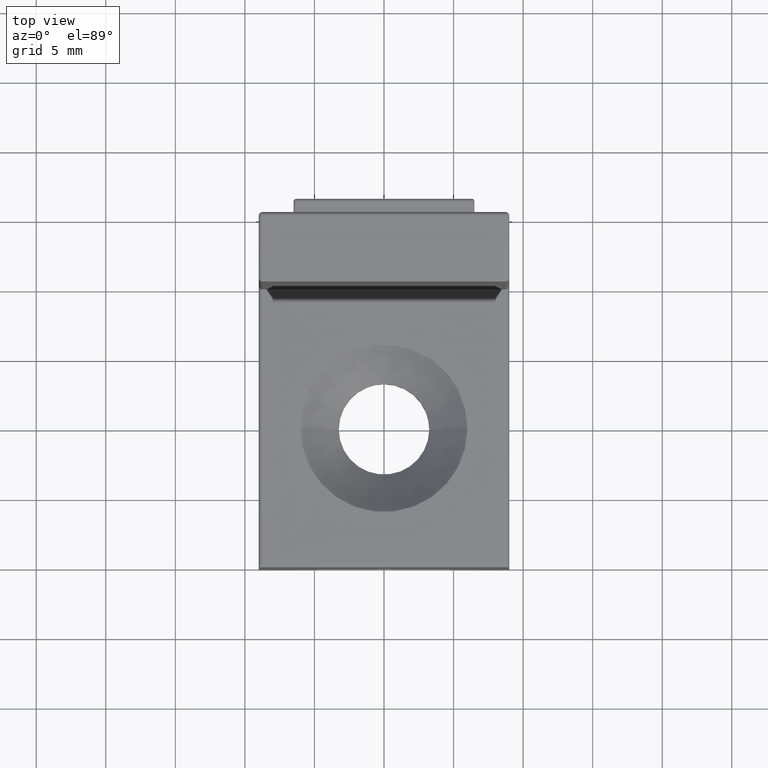
[diagram: clean part render]
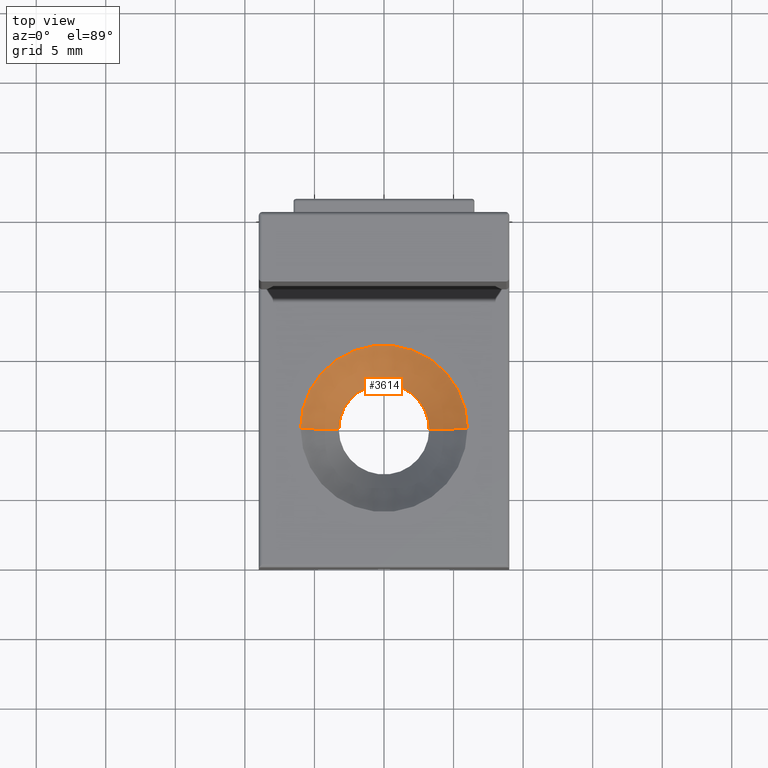
[diagram: same view with one face highlighted and labeled with its STEP entity id]
A machine part, top view. The second image highlights one B-rep face of the part: STEP entity #3614.
In plain terms, the highlighted conical surface has half-angle 45 deg.
Its self-contained STEP definition (entity closure, byte-faithful):
#275 = CARTESIAN_POINT ( 'NONE',  ( -3.249999999999998700, -15.00000000000000000, 4.250000000000000900 ) ) ;
#408 = AXIS2_PLACEMENT_3D ( 'NONE', #8706, #3128, #4323 ) ;
#565 = VERTEX_POINT ( 'NONE', #2586 ) ;
#1344 = CONICAL_SURFACE ( 'NONE', #2089, 6.000000000000000000, 0.7853981633974482800 ) ;
#1636 = VECTOR ( 'NONE', #7721, 1000.000000000000000 ) ;
#1920 = DIRECTION ( 'NONE',  ( 1.000000000000000000, 0.0000000000000000000, 0.0000000000000000000 ) ) ;
#2089 = AXIS2_PLACEMENT_3D ( 'NONE', #10479, #5043, #1920 ) ;
#2526 = CARTESIAN_POINT ( 'NONE',  ( -5.999999999999998200, -15.00000000000000000, 7.000000000000000900 ) ) ;
#2586 = CARTESIAN_POINT ( 'NONE',  ( 3.250000000000002200, -15.00000000000000000, 4.250000000000000900 ) ) ;
#2752 = ORIENTED_EDGE ( 'NONE', *, *, #9404, .T. ) ;
#2836 = CARTESIAN_POINT ( 'NONE',  ( 1.836970198721029600E-015, -15.00000000000000000, 4.250000000000000900 ) ) ;
#3128 = DIRECTION ( 'NONE',  ( -0.0000000000000000000, -0.0000000000000000000, 1.000000000000000000 ) ) ;
#3388 = EDGE_CURVE ( 'NONE', #12302, #9602, #9595, .T. ) ;
#3614 = ADVANCED_FACE ( 'NONE', ( #8742 ), #1344, .F. ) ;
#3953 = DIRECTION ( 'NONE',  ( 1.000000000000000000, 0.0000000000000000000, 0.0000000000000000000 ) ) ;
#4187 = VERTEX_POINT ( 'NONE', #13155 ) ;
#4323 = DIRECTION ( 'NONE',  ( 1.000000000000000000, 0.0000000000000000000, 0.0000000000000000000 ) ) ;
#4550 = LINE ( 'NONE', #9924, #1636 ) ;
#4748 = DIRECTION ( 'NONE',  ( -0.7071067811865474600, 8.659560562354931600E-017, 0.7071067811865475700 ) ) ;
#4943 = DIRECTION ( 'NONE',  ( -0.0000000000000000000, -0.0000000000000000000, 1.000000000000000000 ) ) ;
#5043 = DIRECTION ( 'NONE',  ( -0.0000000000000000000, -0.0000000000000000000, 1.000000000000000000 ) ) ;
#5722 = ORIENTED_EDGE ( 'NONE', *, *, #8188, .F. ) ;
#6760 = CARTESIAN_POINT ( 'NONE',  ( -5.999999999999998200, -15.00000000000000000, 7.000000000000000900 ) ) ;
#6857 = ORIENTED_EDGE ( 'NONE', *, *, #3388, .F. ) ;
#7343 = CIRCLE ( 'NONE', #408, 6.000000000000000000 ) ;
#7358 = CIRCLE ( 'NONE', #7472, 3.250000000000000400 ) ;
#7472 = AXIS2_PLACEMENT_3D ( 'NONE', #2836, #4943, #3953 ) ;
#7721 = DIRECTION ( 'NONE',  ( 0.7071067811865474600, 0.0000000000000000000, 0.7071067811865475700 ) ) ;
#8188 = EDGE_CURVE ( 'NONE', #565, #12302, #7358, .T. ) ;
#8706 = CARTESIAN_POINT ( 'NONE',  ( 1.836970198721029600E-015, -15.00000000000000000, 7.000000000000000900 ) ) ;
#8742 = FACE_OUTER_BOUND ( 'NONE', #9552, .T. ) ;
#9404 = EDGE_CURVE ( 'NONE', #4187, #9602, #7343, .T. ) ;
#9552 = EDGE_LOOP ( 'NONE', ( #6857, #5722, #10371, #2752 ) ) ;
#9595 = LINE ( 'NONE', #2526, #9919 ) ;
#9602 = VERTEX_POINT ( 'NONE', #6760 ) ;
#9919 = VECTOR ( 'NONE', #4748, 1000.000000000000000 ) ;
#9924 = CARTESIAN_POINT ( 'NONE',  ( 6.000000000000001800, -15.00000000000000000, 7.000000000000000900 ) ) ;
#10371 = ORIENTED_EDGE ( 'NONE', *, *, #13831, .T. ) ;
#10479 = CARTESIAN_POINT ( 'NONE',  ( 1.836970198721029600E-015, -15.00000000000000000, 7.000000000000000900 ) ) ;
#12302 = VERTEX_POINT ( 'NONE', #275 ) ;
#13155 = CARTESIAN_POINT ( 'NONE',  ( 6.000000000000001800, -15.00000000000000000, 7.000000000000000900 ) ) ;
#13831 = EDGE_CURVE ( 'NONE', #565, #4187, #4550, .T. ) ;